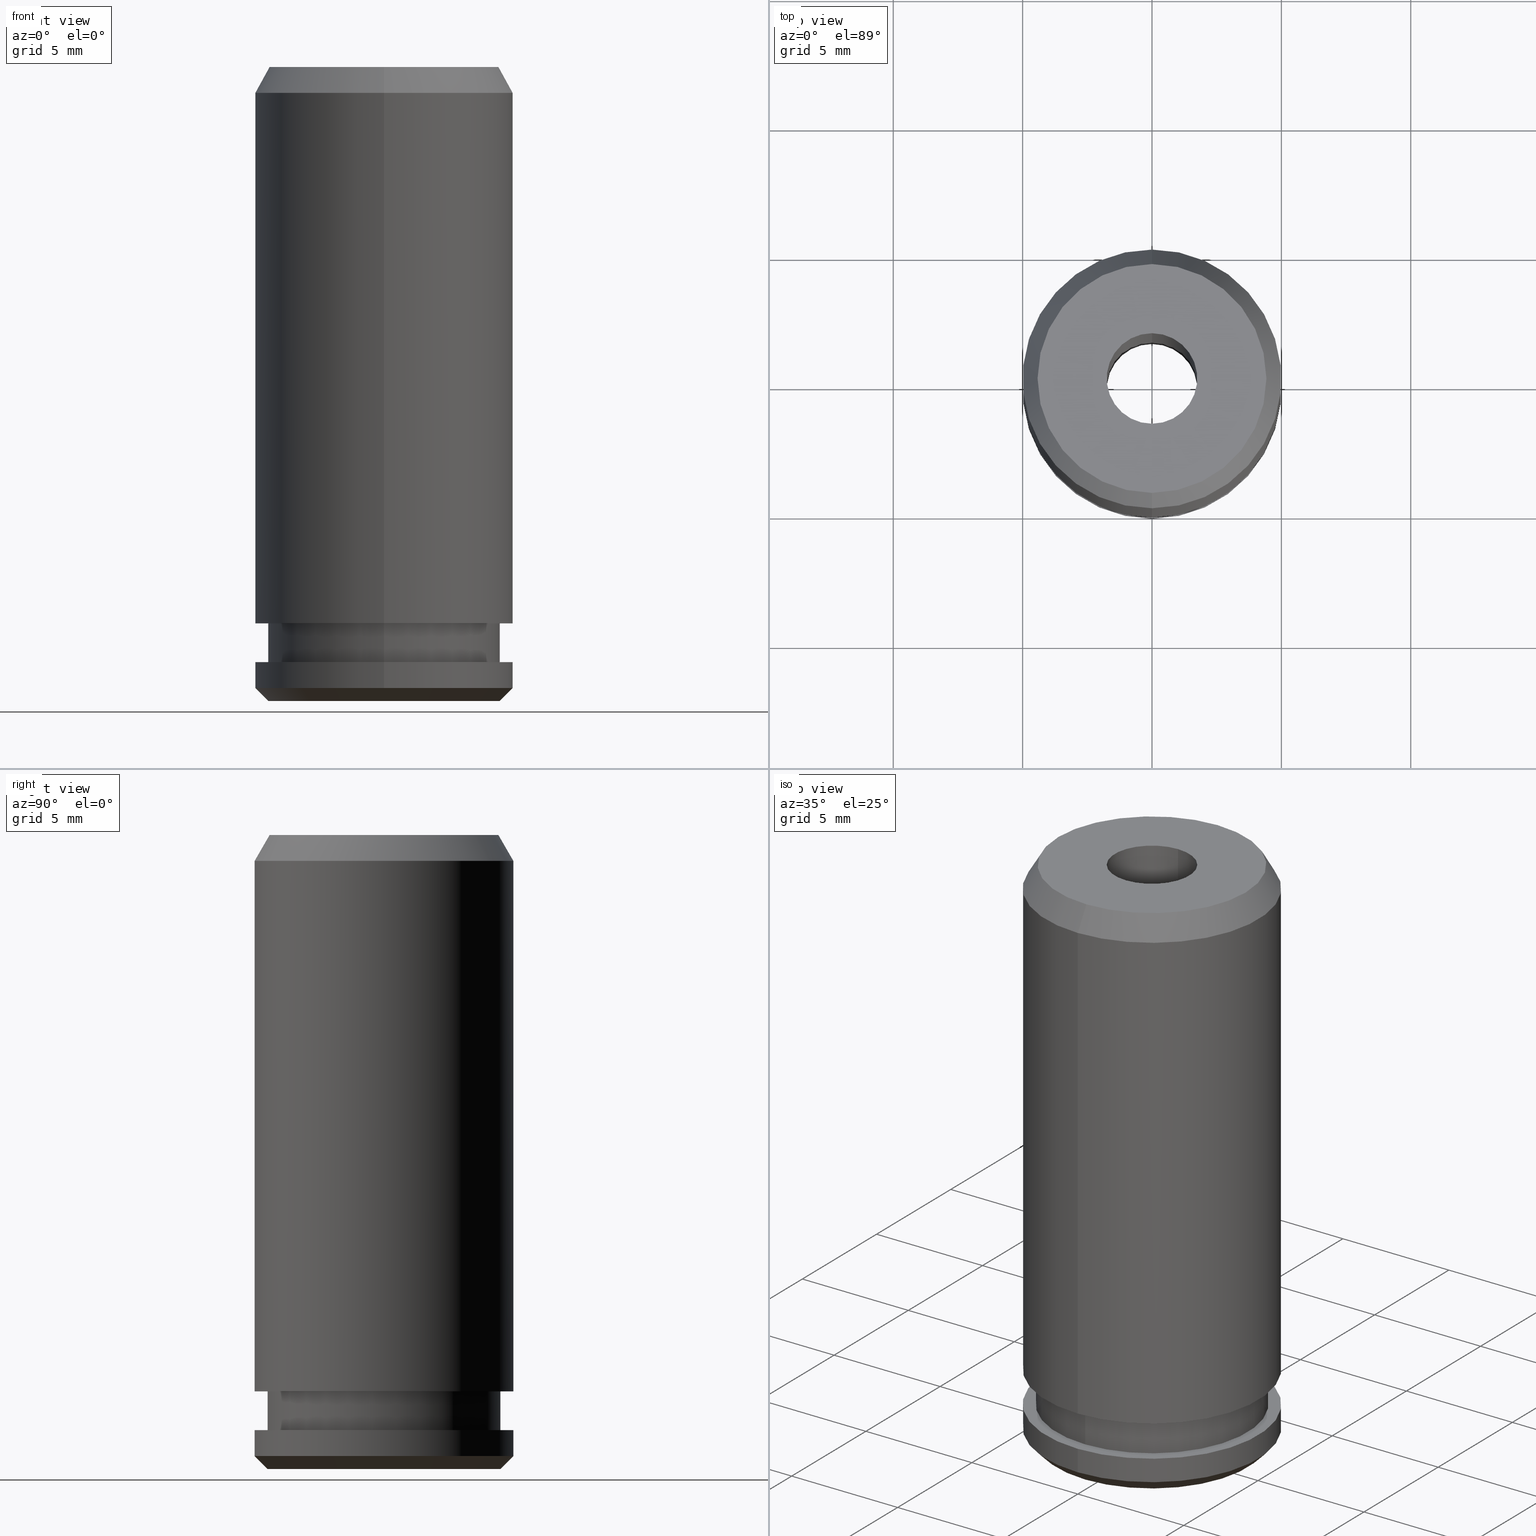
[diagram: canonical four-view strip — front | top / right | iso, engineering-drawing reading convention]
A machine part, canonical four-view strip (front | top / right | iso — engineering-drawing reading convention). The complete STEP part file that produces these views, byte-faithful:
ISO-10303-21;
HEADER;
FILE_DESCRIPTION(('no description'),'unknown implementation level');
FILE_NAME('D1EF588D-F935-4951-9EDD-8E3CCFFF2C74_export.stp','  ',('CIMSOURCE GmbH'),('CADClick - KiM GmbH - www.kimweb.de'),'unknown preprocess','ACIS','unknown authorization');
FILE_SCHEMA(('automotive_design'));
ENDSEC;
DATA;
#1=MECHANICAL_DESIGN_GEOMETRIC_PRESENTATION_REPRESENTATION(' ',(#10,#11,#12,#13,#14,#15,#16,#17,#18,#19,#20,#21,#22,#23,#24,#25,#26,#27,#28,#29,#30,#31,#32,#33,#34,#35,#36,#37,#38,#39,#40,#41,#42,#43,#44,#45,#46,#47,#48,#49,#50,#51,#52,#53,#54,#55,#56,#57,#58,#59,#60,#61,#62,#63,#64,#65,#66,#67,#68,#69,#70,#71,#72,#73,#74,#75,#76,#77,#78,#79,#80,#81,#82,#83,#84,#85),#6);
#2=PRODUCT_DEFINITION_CONTEXT('',#86,'design');
#3=APPLICATION_PROTOCOL_DEFINITION('INTERNATIONAL STANDARD','automotive_design',1994,#86);
#4=PRODUCT_CATEGORY_RELATIONSHIP('NONE','NONE',#87,#88);
#5=SHAPE_DEFINITION_REPRESENTATION(#89,#90);
#6= (GEOMETRIC_REPRESENTATION_CONTEXT(3)GLOBAL_UNCERTAINTY_ASSIGNED_CONTEXT((#93))GLOBAL_UNIT_ASSIGNED_CONTEXT((#95,#96,#97))REPRESENTATION_CONTEXT('NONE','WORKSPACE'));
#10=STYLED_ITEM('',(#99),#100);
#11=STYLED_ITEM('',(#101),#102);
#12=STYLED_ITEM('',(#103),#104);
#13=STYLED_ITEM('',(#105),#106);
#14=STYLED_ITEM('',(#107),#108);
#15=STYLED_ITEM('',(#109),#110);
#16=STYLED_ITEM('',(#111),#112);
#17=STYLED_ITEM('',(#113),#114);
#18=STYLED_ITEM('',(#115),#116);
#19=STYLED_ITEM('',(#117),#118);
#20=STYLED_ITEM('',(#119),#120);
#21=STYLED_ITEM('',(#121),#122);
#22=STYLED_ITEM('',(#123),#124);
#23=STYLED_ITEM('',(#125),#126);
#24=STYLED_ITEM('',(#127),#128);
#25=STYLED_ITEM('',(#129),#130);
#26=STYLED_ITEM('',(#131),#132);
#27=STYLED_ITEM('',(#133),#134);
#28=STYLED_ITEM('',(#135),#136);
#29=STYLED_ITEM('',(#137),#138);
#30=STYLED_ITEM('',(#139),#140);
#31=STYLED_ITEM('',(#141),#142);
#32=STYLED_ITEM('',(#143),#144);
#33=STYLED_ITEM('',(#145),#146);
#34=STYLED_ITEM('',(#147),#148);
#35=STYLED_ITEM('',(#149),#150);
#36=STYLED_ITEM('',(#151),#152);
#37=STYLED_ITEM('',(#153),#154);
#38=STYLED_ITEM('',(#155),#156);
#39=STYLED_ITEM('',(#157),#158);
#40=STYLED_ITEM('',(#159),#160);
#41=STYLED_ITEM('',(#161),#162);
#42=STYLED_ITEM('',(#163),#164);
#43=STYLED_ITEM('',(#165),#166);
#44=STYLED_ITEM('',(#167),#168);
#45=STYLED_ITEM('',(#169),#170);
#46=STYLED_ITEM('',(#171),#172);
#47=STYLED_ITEM('',(#173),#174);
#48=STYLED_ITEM('',(#175),#176);
#49=STYLED_ITEM('',(#177),#178);
#50=STYLED_ITEM('',(#179),#180);
#51=STYLED_ITEM('',(#181),#182);
#52=STYLED_ITEM('',(#183),#184);
#53=STYLED_ITEM('',(#185),#186);
#54=STYLED_ITEM('',(#187),#188);
#55=STYLED_ITEM('',(#189),#190);
#56=STYLED_ITEM('',(#191),#192);
#57=STYLED_ITEM('',(#193),#194);
#58=STYLED_ITEM('',(#195),#196);
#59=STYLED_ITEM('',(#197),#198);
#60=STYLED_ITEM('',(#199),#200);
#61=STYLED_ITEM('',(#201),#202);
#62=STYLED_ITEM('',(#203),#204);
#63=STYLED_ITEM('',(#205),#206);
#64=STYLED_ITEM('',(#207),#208);
#65=STYLED_ITEM('',(#209),#210);
#66=STYLED_ITEM('',(#211),#212);
#67=STYLED_ITEM('',(#213),#214);
#68=STYLED_ITEM('',(#215),#216);
#69=STYLED_ITEM('',(#217),#218);
#70=STYLED_ITEM('',(#219),#220);
#71=STYLED_ITEM('',(#221),#222);
#72=STYLED_ITEM('',(#223),#224);
#73=STYLED_ITEM('',(#225),#226);
#74=STYLED_ITEM('',(#227),#228);
#75=STYLED_ITEM('',(#229),#230);
#76=STYLED_ITEM('',(#231),#232);
#77=STYLED_ITEM('',(#233),#234);
#78=STYLED_ITEM('',(#235),#236);
#79=STYLED_ITEM('',(#237),#238);
#80=STYLED_ITEM('',(#239),#240);
#81=STYLED_ITEM('',(#241),#242);
#82=STYLED_ITEM('',(#243),#244);
#83=STYLED_ITEM('',(#245),#246);
#84=STYLED_ITEM('',(#247),#248);
#85=STYLED_ITEM('',(#249),#250);
#86=APPLICATION_CONTEXT(' ');
#87=PRODUCT_CATEGORY('part','NONE');
#88=PRODUCT_RELATED_PRODUCT_CATEGORY('detail',' ',(#251));
#89=PRODUCT_DEFINITION_SHAPE('NONE','NONE',#252);
#90=ADVANCED_BREP_SHAPE_REPRESENTATION('NONE',(#253,#254),#6);
#93=UNCERTAINTY_MEASURE_WITH_UNIT(LENGTH_MEASURE(1.0E-006),#95,'','');
#95= (CONVERSION_BASED_UNIT('MILLIMETRE',#257)LENGTH_UNIT()NAMED_UNIT(#260));
#96= (NAMED_UNIT(#262)PLANE_ANGLE_UNIT()SI_UNIT($,.RADIAN.));
#97= (NAMED_UNIT(#262)SOLID_ANGLE_UNIT()SI_UNIT($,.STERADIAN.));
#99=PRESENTATION_STYLE_ASSIGNMENT((#268));
#100=ADVANCED_FACE('NONE',(#269),#270,.T.);
#101=PRESENTATION_STYLE_ASSIGNMENT((#271));
#102=VERTEX_POINT('NONE',#272);
#103=PRESENTATION_STYLE_ASSIGNMENT((#273));
#104=VERTEX_POINT('NONE',#274);
#105=PRESENTATION_STYLE_ASSIGNMENT((#275));
#106=ADVANCED_FACE('NONE',(#276),#277,.T.);
#107=PRESENTATION_STYLE_ASSIGNMENT((#278));
#108=EDGE_CURVE('NONE',#170,#204,#279,.T.);
#109=PRESENTATION_STYLE_ASSIGNMENT((#280));
#110=EDGE_CURVE('NONE',#162,#138,#281,.T.);
#111=PRESENTATION_STYLE_ASSIGNMENT((#282));
#112=VERTEX_POINT('NONE',#283);
#113=PRESENTATION_STYLE_ASSIGNMENT((#284));
#114=VERTEX_POINT('NONE',#285);
#115=PRESENTATION_STYLE_ASSIGNMENT((#286));
#116=EDGE_CURVE('NONE',#250,#104,#287,.T.);
#117=PRESENTATION_STYLE_ASSIGNMENT((#288));
#118=EDGE_CURVE('NONE',#162,#146,#289,.T.);
#119=PRESENTATION_STYLE_ASSIGNMENT((#290));
#120=EDGE_CURVE('NONE',#216,#192,#291,.T.);
#121=PRESENTATION_STYLE_ASSIGNMENT((#292));
#122=EDGE_CURVE('NONE',#148,#156,#293,.T.);
#123=PRESENTATION_STYLE_ASSIGNMENT((#294));
#124=EDGE_CURVE('NONE',#178,#114,#295,.T.);
#125=PRESENTATION_STYLE_ASSIGNMENT((#296));
#126=EDGE_CURVE('NONE',#146,#218,#297,.T.);
#127=PRESENTATION_STYLE_ASSIGNMENT((#298));
#128=EDGE_CURVE('NONE',#204,#226,#299,.T.);
#129=PRESENTATION_STYLE_ASSIGNMENT((#300));
#130=EDGE_CURVE('NONE',#184,#176,#301,.T.);
#131=PRESENTATION_STYLE_ASSIGNMENT((#302));
#132=ADVANCED_FACE('NONE',(#303,#304),#305,.T.);
#133=PRESENTATION_STYLE_ASSIGNMENT((#306));
#134=EDGE_CURVE('NONE',#228,#176,#307,.T.);
#135=PRESENTATION_STYLE_ASSIGNMENT((#308));
#136=EDGE_CURVE('NONE',#104,#192,#309,.T.);
#137=PRESENTATION_STYLE_ASSIGNMENT((#310));
#138=VERTEX_POINT('NONE',#311);
#139=PRESENTATION_STYLE_ASSIGNMENT((#312));
#140=ADVANCED_FACE('NONE',(#313),#314,.T.);
#141=PRESENTATION_STYLE_ASSIGNMENT((#315));
#142=ADVANCED_FACE('NONE',(#316),#317,.F.);
#143=PRESENTATION_STYLE_ASSIGNMENT((#318));
#144=EDGE_CURVE('NONE',#148,#138,#319,.T.);
#145=PRESENTATION_STYLE_ASSIGNMENT((#320));
#146=VERTEX_POINT('NONE',#321);
#147=PRESENTATION_STYLE_ASSIGNMENT((#322));
#148=VERTEX_POINT('NONE',#323);
#149=PRESENTATION_STYLE_ASSIGNMENT((#324));
#150=ADVANCED_FACE('NONE',(#325),#326,.T.);
#151=PRESENTATION_STYLE_ASSIGNMENT((#327));
#152=ADVANCED_FACE('NONE',(#328),#329,.T.);
#153=PRESENTATION_STYLE_ASSIGNMENT((#330));
#154=EDGE_CURVE('NONE',#228,#168,#331,.T.);
#155=PRESENTATION_STYLE_ASSIGNMENT((#332));
#156=VERTEX_POINT('NONE',#333);
#157=PRESENTATION_STYLE_ASSIGNMENT((#334));
#158=ADVANCED_FACE('NONE',(#335,#336),#337,.T.);
#159=PRESENTATION_STYLE_ASSIGNMENT((#338));
#160=ADVANCED_FACE('NONE',(#339),#340,.T.);
#161=PRESENTATION_STYLE_ASSIGNMENT((#341));
#162=VERTEX_POINT('NONE',#342);
#163=PRESENTATION_STYLE_ASSIGNMENT((#343));
#164=EDGE_CURVE('NONE',#170,#112,#344,.T.);
#165=PRESENTATION_STYLE_ASSIGNMENT((#345));
#166=EDGE_CURVE('NONE',#176,#184,#346,.T.);
#167=PRESENTATION_STYLE_ASSIGNMENT((#347));
#168=VERTEX_POINT('NONE',#348);
#169=PRESENTATION_STYLE_ASSIGNMENT((#349));
#170=VERTEX_POINT('NONE',#350);
#171=PRESENTATION_STYLE_ASSIGNMENT((#351));
#172=EDGE_CURVE('NONE',#218,#138,#352,.T.);
#173=PRESENTATION_STYLE_ASSIGNMENT((#353));
#174=EDGE_CURVE('NONE',#156,#218,#354,.T.);
#175=PRESENTATION_STYLE_ASSIGNMENT((#355));
#176=VERTEX_POINT('NONE',#356);
#177=PRESENTATION_STYLE_ASSIGNMENT((#357));
#178=VERTEX_POINT('NONE',#358);
#179=PRESENTATION_STYLE_ASSIGNMENT((#359));
#180=EDGE_CURVE('NONE',#112,#226,#360,.T.);
#181=PRESENTATION_STYLE_ASSIGNMENT((#361));
#182=EDGE_CURVE('NONE',#216,#250,#362,.T.);
#183=PRESENTATION_STYLE_ASSIGNMENT((#363));
#184=VERTEX_POINT('NONE',#364);
#185=PRESENTATION_STYLE_ASSIGNMENT((#365));
#186=EDGE_CURVE('NONE',#204,#170,#366,.T.);
#187=PRESENTATION_STYLE_ASSIGNMENT((#367));
#188=ADVANCED_FACE('NONE',(#368),#369,.F.);
#189=PRESENTATION_STYLE_ASSIGNMENT((#370));
#190=EDGE_CURVE('NONE',#236,#228,#371,.T.);
#191=PRESENTATION_STYLE_ASSIGNMENT((#372));
#192=VERTEX_POINT('NONE',#373);
#193=PRESENTATION_STYLE_ASSIGNMENT((#374));
#194=EDGE_CURVE('NONE',#192,#104,#375,.T.);
#195=PRESENTATION_STYLE_ASSIGNMENT((#376));
#196=ADVANCED_FACE('NONE',(#377,#378),#379,.T.);
#197=PRESENTATION_STYLE_ASSIGNMENT((#380));
#198=ADVANCED_FACE('NONE',(#381),#382,.F.);
#199=PRESENTATION_STYLE_ASSIGNMENT((#383));
#200=ADVANCED_FACE('NONE',(#384),#385,.T.);
#201=PRESENTATION_STYLE_ASSIGNMENT((#386));
#202=EDGE_CURVE('NONE',#168,#228,#387,.T.);
#203=PRESENTATION_STYLE_ASSIGNMENT((#388));
#204=VERTEX_POINT('NONE',#389);
#205=PRESENTATION_STYLE_ASSIGNMENT((#390));
#206=EDGE_CURVE('NONE',#102,#236,#391,.T.);
#207=PRESENTATION_STYLE_ASSIGNMENT((#392));
#208=EDGE_CURVE('NONE',#114,#178,#393,.T.);
#209=PRESENTATION_STYLE_ASSIGNMENT((#394));
#210=EDGE_CURVE('NONE',#102,#168,#395,.T.);
#211=PRESENTATION_STYLE_ASSIGNMENT((#396));
#212=EDGE_CURVE('NONE',#104,#178,#397,.T.);
#213=PRESENTATION_STYLE_ASSIGNMENT((#398));
#214=ADVANCED_FACE('NONE',(#399),#400,.F.);
#215=PRESENTATION_STYLE_ASSIGNMENT((#401));
#216=VERTEX_POINT('NONE',#402);
#217=PRESENTATION_STYLE_ASSIGNMENT((#403));
#218=VERTEX_POINT('NONE',#404);
#219=PRESENTATION_STYLE_ASSIGNMENT((#405));
#220=ADVANCED_FACE('NONE',(#406),#407,.T.);
#221=PRESENTATION_STYLE_ASSIGNMENT((#408));
#222=EDGE_CURVE('NONE',#146,#162,#409,.T.);
#223=PRESENTATION_STYLE_ASSIGNMENT((#410));
#224=ADVANCED_FACE('NONE',(#411),#412,.T.);
#225=PRESENTATION_STYLE_ASSIGNMENT((#413));
#226=VERTEX_POINT('NONE',#414);
#227=PRESENTATION_STYLE_ASSIGNMENT((#415));
#228=VERTEX_POINT('NONE',#416);
#229=PRESENTATION_STYLE_ASSIGNMENT((#417));
#230=EDGE_CURVE('NONE',#156,#148,#418,.T.);
#231=PRESENTATION_STYLE_ASSIGNMENT((#419));
#232=EDGE_CURVE('NONE',#236,#102,#420,.T.);
#233=PRESENTATION_STYLE_ASSIGNMENT((#421));
#234=EDGE_CURVE('NONE',#168,#184,#422,.T.);
#235=PRESENTATION_STYLE_ASSIGNMENT((#423));
#236=VERTEX_POINT('NONE',#424);
#237=PRESENTATION_STYLE_ASSIGNMENT((#425));
#238=EDGE_CURVE('NONE',#250,#216,#426,.T.);
#239=PRESENTATION_STYLE_ASSIGNMENT((#427));
#240=ADVANCED_FACE('NONE',(#428),#429,.T.);
#241=PRESENTATION_STYLE_ASSIGNMENT((#430));
#242=EDGE_CURVE('NONE',#138,#218,#431,.T.);
#243=PRESENTATION_STYLE_ASSIGNMENT((#432));
#244=ADVANCED_FACE('NONE',(#433,#434),#435,.T.);
#245=PRESENTATION_STYLE_ASSIGNMENT((#436));
#246=EDGE_CURVE('NONE',#192,#114,#437,.T.);
#247=PRESENTATION_STYLE_ASSIGNMENT((#438));
#248=EDGE_CURVE('NONE',#226,#112,#439,.T.);
#249=PRESENTATION_STYLE_ASSIGNMENT((#440));
#250=VERTEX_POINT('NONE',#441);
#251=PRODUCT('NONE','NONE','PART-NONE-DESC',(#442));
#252=PRODUCT_DEFINITION('NONE','NONE',#443,#2);
#253=MANIFOLD_SOLID_BREP('NONE',#444);
#254=AXIS2_PLACEMENT_3D('',#445,#446,#447);
#257=LENGTH_MEASURE_WITH_UNIT(LENGTH_MEASURE(1.0),#448);
#260=DIMENSIONAL_EXPONENTS(1.0,0.0,0.0,0.0,0.0,0.0,0.0);
#262=DIMENSIONAL_EXPONENTS(0.0,0.0,0.0,0.0,0.0,0.0,0.0);
#268=SURFACE_STYLE_USAGE(.BOTH.,#449);
#269=FACE_OUTER_BOUND('',#450,.T.);
#270=CONICAL_SURFACE('',#451,4.5,0.785398163397447);
#271=POINT_STYLE(' ',#452,POSITIVE_LENGTH_MEASURE(1.0E-006),#453);
#272=CARTESIAN_POINT('',(-2.14306111918916E-016,1.75,24.5));
#273=POINT_STYLE(' ',#454,POSITIVE_LENGTH_MEASURE(1.0E-006),#455);
#274=CARTESIAN_POINT('',(0.0,-5.0,23.5));
#275=SURFACE_STYLE_USAGE(.BOTH.,#456);
#276=FACE_OUTER_BOUND('',#457,.T.);
#277=CONICAL_SURFACE('',#458,5.0,0.5235987755983);
#278=CURVE_STYLE('',#459,POSITIVE_LENGTH_MEASURE(1.0E-006),#460);
#279=CIRCLE('',#461,4.5);
#280=CURVE_STYLE('',#462,POSITIVE_LENGTH_MEASURE(1.0E-006),#463);
#281=LINE('',#464,#465);
#282=POINT_STYLE(' ',#466,POSITIVE_LENGTH_MEASURE(1.0E-006),#467);
#283=CARTESIAN_POINT('',(0.0,-4.5,1.5));
#284=POINT_STYLE(' ',#468,POSITIVE_LENGTH_MEASURE(1.0E-006),#469);
#285=CARTESIAN_POINT('',(-6.12303176911189E-016,5.0,3.0));
#286=CURVE_STYLE('',#470,POSITIVE_LENGTH_MEASURE(1.0E-006),#471);
#287=LINE('',#472,#473);
#288=CURVE_STYLE('',#474,POSITIVE_LENGTH_MEASURE(1.0E-006),#475);
#289=CIRCLE('',#476,5.0);
#290=CURVE_STYLE('',#477,POSITIVE_LENGTH_MEASURE(1.0E-006),#478);
#291=LINE('',#479,#480);
#292=CURVE_STYLE('',#481,POSITIVE_LENGTH_MEASURE(1.0E-006),#482);
#293=CIRCLE('',#483,4.5);
#294=CURVE_STYLE('',#484,POSITIVE_LENGTH_MEASURE(1.0E-006),#485);
#295=CIRCLE('',#486,5.0);
#296=CURVE_STYLE('',#487,POSITIVE_LENGTH_MEASURE(1.0E-006),#488);
#297=LINE('',#489,#490);
#298=CURVE_STYLE('',#491,POSITIVE_LENGTH_MEASURE(1.0E-006),#492);
#299=LINE('',#493,#494);
#300=CURVE_STYLE('',#495,POSITIVE_LENGTH_MEASURE(1.0E-006),#496);
#301=CIRCLE('',#497,2.05);
#302=SURFACE_STYLE_USAGE(.BOTH.,#498);
#303=FACE_OUTER_BOUND('',#499,.T.);
#304=FACE_BOUND('',#500,.T.);
#305=PLANE('',#501);
#306=CURVE_STYLE('',#502,POSITIVE_LENGTH_MEASURE(1.0E-006),#503);
#307=LINE('',#504,#505);
#308=CURVE_STYLE('',#506,POSITIVE_LENGTH_MEASURE(1.0E-006),#507);
#309=CIRCLE('',#508,5.0);
#310=POINT_STYLE(' ',#509,POSITIVE_LENGTH_MEASURE(1.0E-006),#510);
#311=CARTESIAN_POINT('',(-6.12303176911189E-016,5.0,0.5));
#312=SURFACE_STYLE_USAGE(.BOTH.,#511);
#313=FACE_OUTER_BOUND('',#512,.T.);
#314=CYLINDRICAL_SURFACE('',#513,5.0);
#315=SURFACE_STYLE_USAGE(.BOTH.,#514);
#316=FACE_OUTER_BOUND('',#515,.T.);
#317=CYLINDRICAL_SURFACE('',#516,1.75);
#318=CURVE_STYLE('',#517,POSITIVE_LENGTH_MEASURE(1.0E-006),#518);
#319=LINE('',#519,#520);
#320=POINT_STYLE(' ',#521,POSITIVE_LENGTH_MEASURE(1.0E-006),#522);
#321=CARTESIAN_POINT('',(0.0,-5.0,1.5));
#322=POINT_STYLE(' ',#523,POSITIVE_LENGTH_MEASURE(1.0E-006),#524);
#323=CARTESIAN_POINT('',(0.0,4.5,0.0));
#324=SURFACE_STYLE_USAGE(.BOTH.,#525);
#325=FACE_OUTER_BOUND('',#526,.T.);
#326=CONICAL_SURFACE('',#527,5.0,0.5235987755983);
#327=SURFACE_STYLE_USAGE(.BOTH.,#528);
#328=FACE_OUTER_BOUND('',#529,.T.);
#329=CYLINDRICAL_SURFACE('',#530,5.0);
#330=CURVE_STYLE('',#531,POSITIVE_LENGTH_MEASURE(1.0E-006),#532);
#331=CIRCLE('',#533,1.75);
#332=POINT_STYLE(' ',#534,POSITIVE_LENGTH_MEASURE(1.0E-006),#535);
#333=CARTESIAN_POINT('',(-5.81688018065629E-016,-4.5,0.0));
#334=SURFACE_STYLE_USAGE(.BOTH.,#536);
#335=FACE_OUTER_BOUND('',#537,.T.);
#336=FACE_BOUND('',#538,.T.);
#337=PLANE('',#539);
#338=SURFACE_STYLE_USAGE(.BOTH.,#540);
#339=FACE_OUTER_BOUND('',#541,.T.);
#340=CYLINDRICAL_SURFACE('',#542,5.0);
#341=POINT_STYLE(' ',#543,POSITIVE_LENGTH_MEASURE(1.0E-006),#544);
#342=CARTESIAN_POINT('',(-6.12303176911189E-016,5.0,1.5));
#343=CURVE_STYLE('',#545,POSITIVE_LENGTH_MEASURE(1.0E-006),#546);
#344=LINE('',#547,#548);
#345=CURVE_STYLE('',#549,POSITIVE_LENGTH_MEASURE(1.0E-006),#550);
#346=CIRCLE('',#551,2.05);
#347=POINT_STYLE(' ',#552,POSITIVE_LENGTH_MEASURE(1.0E-006),#553);
#348=CARTESIAN_POINT('',(-2.32675207226251E-016,1.75,0.519615242270668));
#349=POINT_STYLE(' ',#554,POSITIVE_LENGTH_MEASURE(1.0E-006),#555);
#350=CARTESIAN_POINT('',(0.0,-4.5,3.0));
#351=CURVE_STYLE('',#556,POSITIVE_LENGTH_MEASURE(1.0E-006),#557);
#352=CIRCLE('',#558,5.0);
#353=CURVE_STYLE('',#559,POSITIVE_LENGTH_MEASURE(1.0E-006),#560);
#354=LINE('',#561,#562);
#355=POINT_STYLE(' ',#563,POSITIVE_LENGTH_MEASURE(1.0E-006),#564);
#356=CARTESIAN_POINT('',(0.0,-2.05,0.0));
#357=POINT_STYLE(' ',#565,POSITIVE_LENGTH_MEASURE(1.0E-006),#566);
#358=CARTESIAN_POINT('',(0.0,-5.0,3.0));
#359=CURVE_STYLE('',#567,POSITIVE_LENGTH_MEASURE(1.0E-006),#568);
#360=CIRCLE('',#569,4.5);
#361=CURVE_STYLE('',#570,POSITIVE_LENGTH_MEASURE(1.0E-006),#571);
#362=CIRCLE('',#572,4.42264973081037);
#363=POINT_STYLE(' ',#573,POSITIVE_LENGTH_MEASURE(1.0E-006),#574);
#364=CARTESIAN_POINT('',(-2.51044302533587E-016,2.05,0.0));
#365=CURVE_STYLE('',#575,POSITIVE_LENGTH_MEASURE(1.0E-006),#576);
#366=CIRCLE('',#577,4.5);
#367=SURFACE_STYLE_USAGE(.BOTH.,#578);
#368=FACE_OUTER_BOUND('',#579,.T.);
#369=CONICAL_SURFACE('',#580,1.75,0.5235987755983);
#370=CURVE_STYLE('',#581,POSITIVE_LENGTH_MEASURE(1.0E-006),#582);
#371=LINE('',#583,#584);
#372=POINT_STYLE(' ',#585,POSITIVE_LENGTH_MEASURE(1.0E-006),#586);
#373=CARTESIAN_POINT('',(-6.12303176911188E-016,5.0,23.5));
#374=CURVE_STYLE('',#587,POSITIVE_LENGTH_MEASURE(1.0E-006),#588);
#375=CIRCLE('',#589,5.0);
#376=SURFACE_STYLE_USAGE(.BOTH.,#590);
#377=FACE_OUTER_BOUND('',#591,.T.);
#378=FACE_BOUND('',#592,.T.);
#379=PLANE('',#593);
#380=SURFACE_STYLE_USAGE(.BOTH.,#594);
#381=FACE_OUTER_BOUND('',#595,.T.);
#382=CONICAL_SURFACE('',#596,1.75,0.5235987755983);
#383=SURFACE_STYLE_USAGE(.BOTH.,#597);
#384=FACE_OUTER_BOUND('',#598,.T.);
#385=CONICAL_SURFACE('',#599,4.5,0.785398163397447);
#386=CURVE_STYLE('',#600,POSITIVE_LENGTH_MEASURE(1.0E-006),#601);
#387=CIRCLE('',#602,1.75);
#388=POINT_STYLE(' ',#603,POSITIVE_LENGTH_MEASURE(1.0E-006),#604);
#389=CARTESIAN_POINT('',(-5.5107285922007E-016,4.5,3.0));
#390=CURVE_STYLE('',#605,POSITIVE_LENGTH_MEASURE(1.0E-006),#606);
#391=CIRCLE('',#607,1.75);
#392=CURVE_STYLE('',#608,POSITIVE_LENGTH_MEASURE(1.0E-006),#609);
#393=CIRCLE('',#610,5.0);
#394=CURVE_STYLE('',#611,POSITIVE_LENGTH_MEASURE(1.0E-006),#612);
#395=LINE('',#613,#614);
#396=CURVE_STYLE('',#615,POSITIVE_LENGTH_MEASURE(1.0E-006),#616);
#397=LINE('',#617,#618);
#398=SURFACE_STYLE_USAGE(.BOTH.,#619);
#399=FACE_OUTER_BOUND('',#620,.T.);
#400=CYLINDRICAL_SURFACE('',#621,1.75);
#401=POINT_STYLE(' ',#622,POSITIVE_LENGTH_MEASURE(1.0E-006),#623);
#402=CARTESIAN_POINT('',(-5.76951836509654E-016,4.42264973081037,24.5));
#403=POINT_STYLE(' ',#624,POSITIVE_LENGTH_MEASURE(1.0E-006),#625);
#404=CARTESIAN_POINT('',(0.0,-5.0,0.5));
#405=SURFACE_STYLE_USAGE(.BOTH.,#626);
#406=FACE_OUTER_BOUND('',#627,.T.);
#407=CYLINDRICAL_SURFACE('',#628,4.5);
#408=CURVE_STYLE('',#629,POSITIVE_LENGTH_MEASURE(1.0E-006),#630);
#409=CIRCLE('',#631,5.0);
#410=SURFACE_STYLE_USAGE(.BOTH.,#632);
#411=FACE_OUTER_BOUND('',#633,.T.);
#412=CYLINDRICAL_SURFACE('',#634,5.0);
#413=POINT_STYLE(' ',#635,POSITIVE_LENGTH_MEASURE(1.0E-006),#636);
#414=CARTESIAN_POINT('',(-5.5107285922007E-016,4.5,1.5));
#415=POINT_STYLE(' ',#637,POSITIVE_LENGTH_MEASURE(1.0E-006),#638);
#416=CARTESIAN_POINT('',(0.0,-1.75,0.519615242270668));
#417=CURVE_STYLE('',#639,POSITIVE_LENGTH_MEASURE(1.0E-006),#640);
#418=CIRCLE('',#641,4.5);
#419=CURVE_STYLE('',#642,POSITIVE_LENGTH_MEASURE(1.0E-006),#643);
#420=CIRCLE('',#644,1.75);
#421=CURVE_STYLE('',#645,POSITIVE_LENGTH_MEASURE(1.0E-006),#646);
#422=LINE('',#647,#648);
#423=POINT_STYLE(' ',#649,POSITIVE_LENGTH_MEASURE(1.0E-006),#650);
#424=CARTESIAN_POINT('',(0.0,-1.75,24.5));
#425=CURVE_STYLE('',#651,POSITIVE_LENGTH_MEASURE(1.0E-006),#652);
#426=CIRCLE('',#653,4.42264973081037);
#427=SURFACE_STYLE_USAGE(.BOTH.,#654);
#428=FACE_OUTER_BOUND('',#655,.T.);
#429=CYLINDRICAL_SURFACE('',#656,4.5);
#430=CURVE_STYLE('',#657,POSITIVE_LENGTH_MEASURE(1.0E-006),#658);
#431=CIRCLE('',#659,5.0);
#432=SURFACE_STYLE_USAGE(.BOTH.,#660);
#433=FACE_OUTER_BOUND('',#661,.T.);
#434=FACE_BOUND('',#662,.T.);
#435=PLANE('',#663);
#436=CURVE_STYLE('',#664,POSITIVE_LENGTH_MEASURE(1.0E-006),#665);
#437=LINE('',#666,#667);
#438=CURVE_STYLE('',#668,POSITIVE_LENGTH_MEASURE(1.0E-006),#669);
#439=CIRCLE('',#670,4.5);
#440=POINT_STYLE(' ',#671,POSITIVE_LENGTH_MEASURE(1.0E-006),#672);
#441=CARTESIAN_POINT('',(0.0,-4.42264973081037,24.5));
#442=PRODUCT_CONTEXT('',#86,'mechanical');
#443=PRODUCT_DEFINITION_FORMATION_WITH_SPECIFIED_SOURCE(' ','NONE',#251,.NOT_KNOWN.);
#444=CLOSED_SHELL('',(#214,#188,#200,#160,#240,#140,#106,#244,#150,#152,#132,#220,#158,#224,#100,#196,#198,#142));
#445=CARTESIAN_POINT('',(0.0,0.0,0.0));
#446=DIRECTION('',(0.0,0.0,1.0));
#447=DIRECTION('',(1.0,0.0,0.0));
#448= (NAMED_UNIT(#260)LENGTH_UNIT()SI_UNIT(.MILLI.,.METRE.));
#449=SURFACE_SIDE_STYLE('',(#674));
#450=EDGE_LOOP('',(#675,#676,#677,#678));
#451=AXIS2_PLACEMENT_3D('',#679,#680,#681);
#452=PRE_DEFINED_MARKER('');
#453=COLOUR_RGB('', 0.5, 0.5, 0.5);
#454=PRE_DEFINED_MARKER('');
#455=COLOUR_RGB('', 0.5, 0.5, 0.5);
#456=SURFACE_SIDE_STYLE('',(#682));
#457=EDGE_LOOP('',(#683,#684,#685,#686));
#458=AXIS2_PLACEMENT_3D('',#687,#688,#689);
#459=DRAUGHTING_PRE_DEFINED_CURVE_FONT('continuous');
#460=COLOUR_RGB('', 0.5, 0.5, 0.5);
#461=AXIS2_PLACEMENT_3D('',#690,#691,#692);
#462=DRAUGHTING_PRE_DEFINED_CURVE_FONT('continuous');
#463=COLOUR_RGB('', 0.5, 0.5, 0.5);
#464=CARTESIAN_POINT('',(-6.12303176911189E-016,5.0,-1.13644490972339));
#465=VECTOR('',#693,1000.0);
#466=PRE_DEFINED_MARKER('');
#467=COLOUR_RGB('', 0.5, 0.5, 0.5);
#468=PRE_DEFINED_MARKER('');
#469=COLOUR_RGB('', 0.5, 0.5, 0.5);
#470=DRAUGHTING_PRE_DEFINED_CURVE_FONT('continuous');
#471=COLOUR_RGB('', 0.5, 0.5, 0.5);
#472=CARTESIAN_POINT('',(0.0,-5.0,23.5));
#473=VECTOR('',#694,1000.0);
#474=DRAUGHTING_PRE_DEFINED_CURVE_FONT('continuous');
#475=COLOUR_RGB('', 0.5, 0.5, 0.5);
#476=AXIS2_PLACEMENT_3D('',#695,#696,#697);
#477=DRAUGHTING_PRE_DEFINED_CURVE_FONT('continuous');
#478=COLOUR_RGB('', 0.5, 0.5, 0.5);
#479=CARTESIAN_POINT('',(-6.12303176911188E-016,5.0,23.5));
#480=VECTOR('',#698,1000.0);
#481=DRAUGHTING_PRE_DEFINED_CURVE_FONT('continuous');
#482=COLOUR_RGB('', 0.5, 0.5, 0.5);
#483=AXIS2_PLACEMENT_3D('',#699,#700,#701);
#484=DRAUGHTING_PRE_DEFINED_CURVE_FONT('continuous');
#485=COLOUR_RGB('', 0.5, 0.5, 0.5);
#486=AXIS2_PLACEMENT_3D('',#702,#703,#704);
#487=DRAUGHTING_PRE_DEFINED_CURVE_FONT('continuous');
#488=COLOUR_RGB('', 0.5, 0.5, 0.5);
#489=CARTESIAN_POINT('',(0.0,-5.0,-1.13644490972339));
#490=VECTOR('',#705,1000.0);
#491=DRAUGHTING_PRE_DEFINED_CURVE_FONT('continuous');
#492=COLOUR_RGB('', 0.5, 0.5, 0.5);
#493=CARTESIAN_POINT('',(-5.5107285922007E-016,4.5,-1.13644490972339));
#494=VECTOR('',#706,1000.0);
#495=DRAUGHTING_PRE_DEFINED_CURVE_FONT('continuous');
#496=COLOUR_RGB('', 0.5, 0.5, 0.5);
#497=AXIS2_PLACEMENT_3D('',#707,#708,#709);
#498=SURFACE_SIDE_STYLE('',(#710));
#499=EDGE_LOOP('',(#711,#712));
#500=EDGE_LOOP('',(#713,#714));
#501=AXIS2_PLACEMENT_3D('',#715,#716,#717);
#502=DRAUGHTING_PRE_DEFINED_CURVE_FONT('continuous');
#503=COLOUR_RGB('', 0.5, 0.5, 0.5);
#504=CARTESIAN_POINT('',(0.0,-1.75,0.519615242270668));
#505=VECTOR('',#718,1000.0);
#506=DRAUGHTING_PRE_DEFINED_CURVE_FONT('continuous');
#507=COLOUR_RGB('', 0.5, 0.5, 0.5);
#508=AXIS2_PLACEMENT_3D('',#719,#720,#721);
#509=PRE_DEFINED_MARKER('');
#510=COLOUR_RGB('', 0.5, 0.5, 0.5);
#511=SURFACE_SIDE_STYLE('',(#722));
#512=EDGE_LOOP('',(#723,#724,#725,#726));
#513=AXIS2_PLACEMENT_3D('',#727,#728,#729);
#514=SURFACE_SIDE_STYLE('',(#730));
#515=EDGE_LOOP('',(#731,#732,#733,#734));
#516=AXIS2_PLACEMENT_3D('',#735,#736,#737);
#517=DRAUGHTING_PRE_DEFINED_CURVE_FONT('continuous');
#518=COLOUR_RGB('', 0.5, 0.5, 0.5);
#519=CARTESIAN_POINT('',(0.0,4.5,0.0));
#520=VECTOR('',#738,1000.0);
#521=PRE_DEFINED_MARKER('');
#522=COLOUR_RGB('', 0.5, 0.5, 0.5);
#523=PRE_DEFINED_MARKER('');
#524=COLOUR_RGB('', 0.5, 0.5, 0.5);
#525=SURFACE_SIDE_STYLE('',(#739));
#526=EDGE_LOOP('',(#740,#741,#742,#743));
#527=AXIS2_PLACEMENT_3D('',#744,#745,#746);
#528=SURFACE_SIDE_STYLE('',(#747));
#529=EDGE_LOOP('',(#748,#749,#750,#751));
#530=AXIS2_PLACEMENT_3D('',#752,#753,#754);
#531=DRAUGHTING_PRE_DEFINED_CURVE_FONT('continuous');
#532=COLOUR_RGB('', 0.5, 0.5, 0.5);
#533=AXIS2_PLACEMENT_3D('',#755,#756,#757);
#534=PRE_DEFINED_MARKER('');
#535=COLOUR_RGB('', 0.5, 0.5, 0.5);
#536=SURFACE_SIDE_STYLE('',(#758));
#537=EDGE_LOOP('',(#759,#760));
#538=EDGE_LOOP('',(#761,#762));
#539=AXIS2_PLACEMENT_3D('',#763,#764,#765);
#540=SURFACE_SIDE_STYLE('',(#766));
#541=EDGE_LOOP('',(#767,#768,#769,#770));
#542=AXIS2_PLACEMENT_3D('',#771,#772,#773);
#543=PRE_DEFINED_MARKER('');
#544=COLOUR_RGB('', 0.5, 0.5, 0.5);
#545=DRAUGHTING_PRE_DEFINED_CURVE_FONT('continuous');
#546=COLOUR_RGB('', 0.5, 0.5, 0.5);
#547=CARTESIAN_POINT('',(0.0,-4.5,-1.13644490972339));
#548=VECTOR('',#774,1000.0);
#549=DRAUGHTING_PRE_DEFINED_CURVE_FONT('continuous');
#550=COLOUR_RGB('', 0.5, 0.5, 0.5);
#551=AXIS2_PLACEMENT_3D('',#775,#776,#777);
#552=PRE_DEFINED_MARKER('');
#553=COLOUR_RGB('', 0.5, 0.5, 0.5);
#554=PRE_DEFINED_MARKER('');
#555=COLOUR_RGB('', 0.5, 0.5, 0.5);
#556=DRAUGHTING_PRE_DEFINED_CURVE_FONT('continuous');
#557=COLOUR_RGB('', 0.5, 0.5, 0.5);
#558=AXIS2_PLACEMENT_3D('',#778,#779,#780);
#559=DRAUGHTING_PRE_DEFINED_CURVE_FONT('continuous');
#560=COLOUR_RGB('', 0.5, 0.5, 0.5);
#561=CARTESIAN_POINT('',(-5.5107285922007E-016,-4.5,0.0));
#562=VECTOR('',#781,1000.0);
#563=PRE_DEFINED_MARKER('');
#564=COLOUR_RGB('', 0.5, 0.5, 0.5);
#565=PRE_DEFINED_MARKER('');
#566=COLOUR_RGB('', 0.5, 0.5, 0.5);
#567=DRAUGHTING_PRE_DEFINED_CURVE_FONT('continuous');
#568=COLOUR_RGB('', 0.5, 0.5, 0.5);
#569=AXIS2_PLACEMENT_3D('',#782,#783,#784);
#570=DRAUGHTING_PRE_DEFINED_CURVE_FONT('continuous');
#571=COLOUR_RGB('', 0.5, 0.5, 0.5);
#572=AXIS2_PLACEMENT_3D('',#785,#786,#787);
#573=PRE_DEFINED_MARKER('');
#574=COLOUR_RGB('', 0.5, 0.5, 0.5);
#575=DRAUGHTING_PRE_DEFINED_CURVE_FONT('continuous');
#576=COLOUR_RGB('', 0.5, 0.5, 0.5);
#577=AXIS2_PLACEMENT_3D('',#788,#789,#790);
#578=SURFACE_SIDE_STYLE('',(#791));
#579=EDGE_LOOP('',(#792,#793,#794,#795));
#580=AXIS2_PLACEMENT_3D('',#796,#797,#798);
#581=DRAUGHTING_PRE_DEFINED_CURVE_FONT('continuous');
#582=COLOUR_RGB('', 0.5, 0.5, 0.5);
#583=CARTESIAN_POINT('',(0.0,-1.75,-1.13644490972339));
#584=VECTOR('',#799,1000.0);
#585=PRE_DEFINED_MARKER('');
#586=COLOUR_RGB('', 0.5, 0.5, 0.5);
#587=DRAUGHTING_PRE_DEFINED_CURVE_FONT('continuous');
#588=COLOUR_RGB('', 0.5, 0.5, 0.5);
#589=AXIS2_PLACEMENT_3D('',#800,#801,#802);
#590=SURFACE_SIDE_STYLE('',(#803));
#591=EDGE_LOOP('',(#804,#805));
#592=EDGE_LOOP('',(#806,#807));
#593=AXIS2_PLACEMENT_3D('',#808,#809,#810);
#594=SURFACE_SIDE_STYLE('',(#811));
#595=EDGE_LOOP('',(#812,#813,#814,#815));
#596=AXIS2_PLACEMENT_3D('',#816,#817,#818);
#597=SURFACE_SIDE_STYLE('',(#819));
#598=EDGE_LOOP('',(#820,#821,#822,#823));
#599=AXIS2_PLACEMENT_3D('',#824,#825,#826);
#600=DRAUGHTING_PRE_DEFINED_CURVE_FONT('continuous');
#601=COLOUR_RGB('', 0.5, 0.5, 0.5);
#602=AXIS2_PLACEMENT_3D('',#827,#828,#829);
#603=PRE_DEFINED_MARKER('');
#604=COLOUR_RGB('', 0.5, 0.5, 0.5);
#605=DRAUGHTING_PRE_DEFINED_CURVE_FONT('continuous');
#606=COLOUR_RGB('', 0.5, 0.5, 0.5);
#607=AXIS2_PLACEMENT_3D('',#830,#831,#832);
#608=DRAUGHTING_PRE_DEFINED_CURVE_FONT('continuous');
#609=COLOUR_RGB('', 0.5, 0.5, 0.5);
#610=AXIS2_PLACEMENT_3D('',#833,#834,#835);
#611=DRAUGHTING_PRE_DEFINED_CURVE_FONT('continuous');
#612=COLOUR_RGB('', 0.5, 0.5, 0.5);
#613=CARTESIAN_POINT('',(-2.14306111918916E-016,1.75,-1.13644490972339));
#614=VECTOR('',#836,1000.0);
#615=DRAUGHTING_PRE_DEFINED_CURVE_FONT('continuous');
#616=COLOUR_RGB('', 0.5, 0.5, 0.5);
#617=CARTESIAN_POINT('',(0.0,-5.0,-1.13644490972339));
#618=VECTOR('',#837,1000.0);
#619=SURFACE_SIDE_STYLE('',(#838));
#620=EDGE_LOOP('',(#839,#840,#841,#842));
#621=AXIS2_PLACEMENT_3D('',#843,#844,#845);
#622=PRE_DEFINED_MARKER('');
#623=COLOUR_RGB('', 0.5, 0.5, 0.5);
#624=PRE_DEFINED_MARKER('');
#625=COLOUR_RGB('', 0.5, 0.5, 0.5);
#626=SURFACE_SIDE_STYLE('',(#846));
#627=EDGE_LOOP('',(#847,#848,#849,#850));
#628=AXIS2_PLACEMENT_3D('',#851,#852,#853);
#629=DRAUGHTING_PRE_DEFINED_CURVE_FONT('continuous');
#630=COLOUR_RGB('', 0.5, 0.5, 0.5);
#631=AXIS2_PLACEMENT_3D('',#854,#855,#856);
#632=SURFACE_SIDE_STYLE('',(#857));
#633=EDGE_LOOP('',(#858,#859,#860,#861));
#634=AXIS2_PLACEMENT_3D('',#862,#863,#864);
#635=PRE_DEFINED_MARKER('');
#636=COLOUR_RGB('', 0.5, 0.5, 0.5);
#637=PRE_DEFINED_MARKER('');
#638=COLOUR_RGB('', 0.5, 0.5, 0.5);
#639=DRAUGHTING_PRE_DEFINED_CURVE_FONT('continuous');
#640=COLOUR_RGB('', 0.5, 0.5, 0.5);
#641=AXIS2_PLACEMENT_3D('',#865,#866,#867);
#642=DRAUGHTING_PRE_DEFINED_CURVE_FONT('continuous');
#643=COLOUR_RGB('', 0.5, 0.5, 0.5);
#644=AXIS2_PLACEMENT_3D('',#868,#869,#870);
#645=DRAUGHTING_PRE_DEFINED_CURVE_FONT('continuous');
#646=COLOUR_RGB('', 0.5, 0.5, 0.5);
#647=CARTESIAN_POINT('',(-2.14306111918916E-016,1.75,0.519615242270668));
#648=VECTOR('',#871,1000.0);
#649=PRE_DEFINED_MARKER('');
#650=COLOUR_RGB('', 0.5, 0.5, 0.5);
#651=DRAUGHTING_PRE_DEFINED_CURVE_FONT('continuous');
#652=COLOUR_RGB('', 0.5, 0.5, 0.5);
#653=AXIS2_PLACEMENT_3D('',#872,#873,#874);
#654=SURFACE_SIDE_STYLE('',(#875));
#655=EDGE_LOOP('',(#876,#877,#878,#879));
#656=AXIS2_PLACEMENT_3D('',#880,#881,#882);
#657=DRAUGHTING_PRE_DEFINED_CURVE_FONT('continuous');
#658=COLOUR_RGB('', 0.5, 0.5, 0.5);
#659=AXIS2_PLACEMENT_3D('',#883,#884,#885);
#660=SURFACE_SIDE_STYLE('',(#886));
#661=EDGE_LOOP('',(#887,#888));
#662=EDGE_LOOP('',(#889,#890));
#663=AXIS2_PLACEMENT_3D('',#891,#892,#893);
#664=DRAUGHTING_PRE_DEFINED_CURVE_FONT('continuous');
#665=COLOUR_RGB('', 0.5, 0.5, 0.5);
#666=CARTESIAN_POINT('',(-6.12303176911188E-016,5.0,-1.13644490972339));
#667=VECTOR('',#894,1000.0);
#668=DRAUGHTING_PRE_DEFINED_CURVE_FONT('continuous');
#669=COLOUR_RGB('', 0.5, 0.5, 0.5);
#670=AXIS2_PLACEMENT_3D('',#895,#896,#897);
#671=PRE_DEFINED_MARKER('');
#672=COLOUR_RGB('', 0.5, 0.5, 0.5);
#674=SURFACE_STYLE_FILL_AREA(#898);
#675=ORIENTED_EDGE('',*,*,#174,.F.);
#676=ORIENTED_EDGE('',*,*,#122,.F.);
#677=ORIENTED_EDGE('',*,*,#144,.T.);
#678=ORIENTED_EDGE('',*,*,#242,.T.);
#679=CARTESIAN_POINT('',(0.0,0.0,0.0));
#680=DIRECTION('',(-0.0,-0.0,1.0));
#681=DIRECTION('',(0.0,1.0,0.0));
#682=SURFACE_STYLE_FILL_AREA(#899);
#683=ORIENTED_EDGE('',*,*,#238,.T.);
#684=ORIENTED_EDGE('',*,*,#120,.T.);
#685=ORIENTED_EDGE('',*,*,#136,.F.);
#686=ORIENTED_EDGE('',*,*,#116,.F.);
#687=CARTESIAN_POINT('',(0.0,0.0,23.5));
#688=DIRECTION('',(0.0,-0.0,-1.0));
#689=DIRECTION('',(0.0,-1.0,0.0));
#690=CARTESIAN_POINT('',(0.0,0.0,3.0));
#691=DIRECTION('',(0.0,0.0,-1.0));
#692=DIRECTION('',(0.0,-1.0,0.0));
#693=DIRECTION('',(0.0,0.0,-1.0));
#694=DIRECTION('',(0.0,-0.500000000000001,-0.866025403784438));
#695=CARTESIAN_POINT('',(0.0,0.0,1.5));
#696=DIRECTION('',(0.0,0.0,-1.0));
#697=DIRECTION('',(0.0,-1.0,0.0));
#698=DIRECTION('',(-6.1230317691119E-017,0.500000000000001,-0.866025403784438));
#699=CARTESIAN_POINT('',(0.0,0.0,0.0));
#700=DIRECTION('',(0.0,0.0,-1.0));
#701=DIRECTION('',(0.0,-1.0,0.0));
#702=CARTESIAN_POINT('',(0.0,0.0,3.0));
#703=DIRECTION('',(0.0,0.0,-1.0));
#704=DIRECTION('',(0.0,-1.0,0.0));
#705=DIRECTION('',(0.0,0.0,-1.0));
#706=DIRECTION('',(0.0,0.0,-1.0));
#707=CARTESIAN_POINT('',(0.0,0.0,0.0));
#708=DIRECTION('',(0.0,0.0,-1.0));
#709=DIRECTION('',(0.0,-1.0,0.0));
#710=SURFACE_STYLE_FILL_AREA(#900);
#711=ORIENTED_EDGE('',*,*,#124,.T.);
#712=ORIENTED_EDGE('',*,*,#208,.T.);
#713=ORIENTED_EDGE('',*,*,#108,.F.);
#714=ORIENTED_EDGE('',*,*,#186,.F.);
#715=CARTESIAN_POINT('',(-4.5,0.0,3.0));
#716=DIRECTION('',(0.0,0.0,-1.0));
#717=DIRECTION('',(-1.0,0.0,0.0));
#718=DIRECTION('',(0.0,-0.500000000000001,-0.866025403784438));
#719=CARTESIAN_POINT('',(0.0,0.0,23.5));
#720=DIRECTION('',(0.0,0.0,-1.0));
#721=DIRECTION('',(0.0,-1.0,0.0));
#722=SURFACE_STYLE_FILL_AREA(#901);
#723=ORIENTED_EDGE('',*,*,#136,.T.);
#724=ORIENTED_EDGE('',*,*,#246,.T.);
#725=ORIENTED_EDGE('',*,*,#124,.F.);
#726=ORIENTED_EDGE('',*,*,#212,.F.);
#727=CARTESIAN_POINT('',(0.0,0.0,-1.13644490972339));
#728=DIRECTION('',(0.0,-0.0,-1.0));
#729=DIRECTION('',(0.0,-1.0,0.0));
#730=SURFACE_STYLE_FILL_AREA(#902);
#731=ORIENTED_EDGE('',*,*,#210,.F.);
#732=ORIENTED_EDGE('',*,*,#232,.F.);
#733=ORIENTED_EDGE('',*,*,#190,.T.);
#734=ORIENTED_EDGE('',*,*,#154,.T.);
#735=CARTESIAN_POINT('',(0.0,0.0,-1.13644490972339));
#736=DIRECTION('',(0.0,-0.0,-1.0));
#737=DIRECTION('',(0.0,-1.0,0.0));
#738=DIRECTION('',(0.0,0.707106781186547,0.707106781186548));
#739=SURFACE_STYLE_FILL_AREA(#903);
#740=ORIENTED_EDGE('',*,*,#120,.F.);
#741=ORIENTED_EDGE('',*,*,#182,.T.);
#742=ORIENTED_EDGE('',*,*,#116,.T.);
#743=ORIENTED_EDGE('',*,*,#194,.F.);
#744=CARTESIAN_POINT('',(0.0,0.0,23.5));
#745=DIRECTION('',(0.0,-0.0,-1.0));
#746=DIRECTION('',(0.0,-1.0,0.0));
#747=SURFACE_STYLE_FILL_AREA(#904);
#748=ORIENTED_EDGE('',*,*,#246,.F.);
#749=ORIENTED_EDGE('',*,*,#194,.T.);
#750=ORIENTED_EDGE('',*,*,#212,.T.);
#751=ORIENTED_EDGE('',*,*,#208,.F.);
#752=CARTESIAN_POINT('',(0.0,0.0,-1.13644490972339));
#753=DIRECTION('',(0.0,-0.0,-1.0));
#754=DIRECTION('',(0.0,-1.0,0.0));
#755=CARTESIAN_POINT('',(0.0,0.0,0.519615242270668));
#756=DIRECTION('',(0.0,0.0,-1.0));
#757=DIRECTION('',(0.0,-1.0,0.0));
#758=SURFACE_STYLE_FILL_AREA(#905);
#759=ORIENTED_EDGE('',*,*,#222,.F.);
#760=ORIENTED_EDGE('',*,*,#118,.F.);
#761=ORIENTED_EDGE('',*,*,#180,.T.);
#762=ORIENTED_EDGE('',*,*,#248,.T.);
#763=CARTESIAN_POINT('',(-5.0,0.0,1.5));
#764=DIRECTION('',(0.0,-0.0,1.0));
#765=DIRECTION('',(0.0,1.0,0.0));
#766=SURFACE_STYLE_FILL_AREA(#906);
#767=ORIENTED_EDGE('',*,*,#222,.T.);
#768=ORIENTED_EDGE('',*,*,#110,.T.);
#769=ORIENTED_EDGE('',*,*,#172,.F.);
#770=ORIENTED_EDGE('',*,*,#126,.F.);
#771=CARTESIAN_POINT('',(0.0,0.0,-1.13644490972339));
#772=DIRECTION('',(0.0,-0.0,-1.0));
#773=DIRECTION('',(0.0,-1.0,0.0));
#774=DIRECTION('',(0.0,0.0,-1.0));
#775=CARTESIAN_POINT('',(0.0,0.0,0.0));
#776=DIRECTION('',(0.0,0.0,-1.0));
#777=DIRECTION('',(0.0,-1.0,0.0));
#778=CARTESIAN_POINT('',(0.0,0.0,0.5));
#779=DIRECTION('',(0.0,0.0,-1.0));
#780=DIRECTION('',(0.0,-1.0,0.0));
#781=DIRECTION('',(-8.65927457071935E-017,-0.707106781186547,0.707106781186548));
#782=CARTESIAN_POINT('',(0.0,0.0,1.5));
#783=DIRECTION('',(0.0,0.0,-1.0));
#784=DIRECTION('',(0.0,-1.0,0.0));
#785=CARTESIAN_POINT('',(0.0,0.0,24.5));
#786=DIRECTION('',(0.0,0.0,-1.0));
#787=DIRECTION('',(0.0,-1.0,0.0));
#788=CARTESIAN_POINT('',(0.0,0.0,3.0));
#789=DIRECTION('',(0.0,0.0,-1.0));
#790=DIRECTION('',(0.0,-1.0,0.0));
#791=SURFACE_STYLE_FILL_AREA(#907);
#792=ORIENTED_EDGE('',*,*,#202,.F.);
#793=ORIENTED_EDGE('',*,*,#234,.T.);
#794=ORIENTED_EDGE('',*,*,#130,.T.);
#795=ORIENTED_EDGE('',*,*,#134,.F.);
#796=CARTESIAN_POINT('',(0.0,0.0,0.519615242270668));
#797=DIRECTION('',(0.0,-0.0,-1.0));
#798=DIRECTION('',(0.0,-1.0,0.0));
#799=DIRECTION('',(0.0,0.0,-1.0));
#800=CARTESIAN_POINT('',(0.0,0.0,23.5));
#801=DIRECTION('',(0.0,0.0,-1.0));
#802=DIRECTION('',(0.0,-1.0,0.0));
#803=SURFACE_STYLE_FILL_AREA(#908);
#804=ORIENTED_EDGE('',*,*,#122,.T.);
#805=ORIENTED_EDGE('',*,*,#230,.T.);
#806=ORIENTED_EDGE('',*,*,#166,.F.);
#807=ORIENTED_EDGE('',*,*,#130,.F.);
#808=CARTESIAN_POINT('',(-2.05,0.0,0.0));
#809=DIRECTION('',(0.0,0.0,-1.0));
#810=DIRECTION('',(-1.0,0.0,0.0));
#811=SURFACE_STYLE_FILL_AREA(#909);
#812=ORIENTED_EDGE('',*,*,#234,.F.);
#813=ORIENTED_EDGE('',*,*,#154,.F.);
#814=ORIENTED_EDGE('',*,*,#134,.T.);
#815=ORIENTED_EDGE('',*,*,#166,.T.);
#816=CARTESIAN_POINT('',(0.0,0.0,0.519615242270668));
#817=DIRECTION('',(0.0,-0.0,-1.0));
#818=DIRECTION('',(0.0,-1.0,0.0));
#819=SURFACE_STYLE_FILL_AREA(#910);
#820=ORIENTED_EDGE('',*,*,#230,.F.);
#821=ORIENTED_EDGE('',*,*,#174,.T.);
#822=ORIENTED_EDGE('',*,*,#172,.T.);
#823=ORIENTED_EDGE('',*,*,#144,.F.);
#824=CARTESIAN_POINT('',(0.0,0.0,0.0));
#825=DIRECTION('',(-0.0,-0.0,1.0));
#826=DIRECTION('',(0.0,1.0,0.0));
#827=CARTESIAN_POINT('',(0.0,0.0,0.519615242270668));
#828=DIRECTION('',(0.0,0.0,-1.0));
#829=DIRECTION('',(0.0,-1.0,0.0));
#830=CARTESIAN_POINT('',(0.0,0.0,24.5));
#831=DIRECTION('',(0.0,0.0,-1.0));
#832=DIRECTION('',(0.0,-1.0,0.0));
#833=CARTESIAN_POINT('',(0.0,0.0,3.0));
#834=DIRECTION('',(0.0,0.0,-1.0));
#835=DIRECTION('',(0.0,-1.0,0.0));
#836=DIRECTION('',(0.0,0.0,-1.0));
#837=DIRECTION('',(0.0,0.0,-1.0));
#838=SURFACE_STYLE_FILL_AREA(#911);
#839=ORIENTED_EDGE('',*,*,#206,.F.);
#840=ORIENTED_EDGE('',*,*,#210,.T.);
#841=ORIENTED_EDGE('',*,*,#202,.T.);
#842=ORIENTED_EDGE('',*,*,#190,.F.);
#843=CARTESIAN_POINT('',(0.0,0.0,-1.13644490972339));
#844=DIRECTION('',(0.0,-0.0,-1.0));
#845=DIRECTION('',(0.0,-1.0,0.0));
#846=SURFACE_STYLE_FILL_AREA(#912);
#847=ORIENTED_EDGE('',*,*,#128,.F.);
#848=ORIENTED_EDGE('',*,*,#186,.T.);
#849=ORIENTED_EDGE('',*,*,#164,.T.);
#850=ORIENTED_EDGE('',*,*,#248,.F.);
#851=CARTESIAN_POINT('',(0.0,0.0,-1.13644490972339));
#852=DIRECTION('',(0.0,-0.0,-1.0));
#853=DIRECTION('',(0.0,-1.0,0.0));
#854=CARTESIAN_POINT('',(0.0,0.0,1.5));
#855=DIRECTION('',(0.0,0.0,-1.0));
#856=DIRECTION('',(0.0,-1.0,0.0));
#857=SURFACE_STYLE_FILL_AREA(#913);
#858=ORIENTED_EDGE('',*,*,#110,.F.);
#859=ORIENTED_EDGE('',*,*,#118,.T.);
#860=ORIENTED_EDGE('',*,*,#126,.T.);
#861=ORIENTED_EDGE('',*,*,#242,.F.);
#862=CARTESIAN_POINT('',(0.0,0.0,-1.13644490972339));
#863=DIRECTION('',(0.0,-0.0,-1.0));
#864=DIRECTION('',(0.0,-1.0,0.0));
#865=CARTESIAN_POINT('',(0.0,0.0,0.0));
#866=DIRECTION('',(0.0,0.0,-1.0));
#867=DIRECTION('',(0.0,-1.0,0.0));
#868=CARTESIAN_POINT('',(0.0,0.0,24.5));
#869=DIRECTION('',(0.0,0.0,-1.0));
#870=DIRECTION('',(0.0,-1.0,0.0));
#871=DIRECTION('',(-6.1230317691119E-017,0.500000000000001,-0.866025403784438));
#872=CARTESIAN_POINT('',(0.0,0.0,24.5));
#873=DIRECTION('',(0.0,0.0,-1.0));
#874=DIRECTION('',(0.0,-1.0,0.0));
#875=SURFACE_STYLE_FILL_AREA(#914);
#876=ORIENTED_EDGE('',*,*,#108,.T.);
#877=ORIENTED_EDGE('',*,*,#128,.T.);
#878=ORIENTED_EDGE('',*,*,#180,.F.);
#879=ORIENTED_EDGE('',*,*,#164,.F.);
#880=CARTESIAN_POINT('',(0.0,0.0,-1.13644490972339));
#881=DIRECTION('',(0.0,-0.0,-1.0));
#882=DIRECTION('',(0.0,-1.0,0.0));
#883=CARTESIAN_POINT('',(0.0,0.0,0.5));
#884=DIRECTION('',(0.0,0.0,-1.0));
#885=DIRECTION('',(0.0,-1.0,0.0));
#886=SURFACE_STYLE_FILL_AREA(#915);
#887=ORIENTED_EDGE('',*,*,#238,.F.);
#888=ORIENTED_EDGE('',*,*,#182,.F.);
#889=ORIENTED_EDGE('',*,*,#232,.T.);
#890=ORIENTED_EDGE('',*,*,#206,.T.);
#891=CARTESIAN_POINT('',(-4.42264973081037,0.0,24.5));
#892=DIRECTION('',(0.0,-0.0,1.0));
#893=DIRECTION('',(0.0,1.0,0.0));
#894=DIRECTION('',(0.0,0.0,-1.0));
#895=CARTESIAN_POINT('',(0.0,0.0,1.5));
#896=DIRECTION('',(0.0,0.0,-1.0));
#897=DIRECTION('',(0.0,-1.0,0.0));
#898=FILL_AREA_STYLE('',(#916));
#899=FILL_AREA_STYLE('',(#917));
#900=FILL_AREA_STYLE('',(#918));
#901=FILL_AREA_STYLE('',(#919));
#902=FILL_AREA_STYLE('',(#920));
#903=FILL_AREA_STYLE('',(#921));
#904=FILL_AREA_STYLE('',(#922));
#905=FILL_AREA_STYLE('',(#923));
#906=FILL_AREA_STYLE('',(#924));
#907=FILL_AREA_STYLE('',(#925));
#908=FILL_AREA_STYLE('',(#926));
#909=FILL_AREA_STYLE('',(#927));
#910=FILL_AREA_STYLE('',(#928));
#911=FILL_AREA_STYLE('',(#929));
#912=FILL_AREA_STYLE('',(#930));
#913=FILL_AREA_STYLE('',(#931));
#914=FILL_AREA_STYLE('',(#932));
#915=FILL_AREA_STYLE('',(#933));
#916=FILL_AREA_STYLE_COLOUR('',#934);
#917=FILL_AREA_STYLE_COLOUR('',#935);
#918=FILL_AREA_STYLE_COLOUR('',#936);
#919=FILL_AREA_STYLE_COLOUR('',#937);
#920=FILL_AREA_STYLE_COLOUR('',#938);
#921=FILL_AREA_STYLE_COLOUR('',#939);
#922=FILL_AREA_STYLE_COLOUR('',#940);
#923=FILL_AREA_STYLE_COLOUR('',#941);
#924=FILL_AREA_STYLE_COLOUR('',#942);
#925=FILL_AREA_STYLE_COLOUR('',#943);
#926=FILL_AREA_STYLE_COLOUR('',#944);
#927=FILL_AREA_STYLE_COLOUR('',#945);
#928=FILL_AREA_STYLE_COLOUR('',#946);
#929=FILL_AREA_STYLE_COLOUR('',#947);
#930=FILL_AREA_STYLE_COLOUR('',#948);
#931=FILL_AREA_STYLE_COLOUR('',#949);
#932=FILL_AREA_STYLE_COLOUR('',#950);
#933=FILL_AREA_STYLE_COLOUR('',#951);
#934=COLOUR_RGB('', 0.5, 0.5, 0.5);
#935=COLOUR_RGB('', 0.5, 0.5, 0.5);
#936=COLOUR_RGB('', 0.5, 0.5, 0.5);
#937=COLOUR_RGB('', 0.5, 0.5, 0.5);
#938=COLOUR_RGB('', 0.5, 0.5, 0.5);
#939=COLOUR_RGB('', 0.5, 0.5, 0.5);
#940=COLOUR_RGB('', 0.5, 0.5, 0.5);
#941=COLOUR_RGB('', 0.5, 0.5, 0.5);
#942=COLOUR_RGB('', 0.5, 0.5, 0.5);
#943=COLOUR_RGB('', 0.5, 0.5, 0.5);
#944=COLOUR_RGB('', 0.5, 0.5, 0.5);
#945=COLOUR_RGB('', 0.5, 0.5, 0.5);
#946=COLOUR_RGB('', 0.5, 0.5, 0.5);
#947=COLOUR_RGB('', 0.5, 0.5, 0.5);
#948=COLOUR_RGB('', 0.5, 0.5, 0.5);
#949=COLOUR_RGB('', 0.5, 0.5, 0.5);
#950=COLOUR_RGB('', 0.5, 0.5, 0.5);
#951=COLOUR_RGB('', 0.5, 0.5, 0.5);
#952=AXIS2_PLACEMENT_3D('PCS',#953,#954,#955);
#953=CARTESIAN_POINT('',(0.0,0.0,24.5));
#954=DIRECTION('',(0.0,0.0,1.0));
#955=DIRECTION('',(1.0,0.0,0.0));
#956=AXIS2_PLACEMENT_3D('MCS',#957,#958,#959);
#957=CARTESIAN_POINT('',(0.0,0.0,1.5));
#958=DIRECTION('',(0.0,0.0,1.0));
#959=DIRECTION('',(1.0,0.0,0.0));
#960=AXIS2_PLACEMENT_3D('CSW_A',#961,#962,#963);
#961=CARTESIAN_POINT('',(0.0,0.0,0.0));
#962=DIRECTION('',(0.0,0.0,1.0));
#963=DIRECTION('',(1.0,0.0,0.0));
#964=CONSTRUCTIVE_GEOMETRY_REPRESENTATION_RELATIONSHIP('coordinate systems',$,#90,#965);
#965=CONSTRUCTIVE_GEOMETRY_REPRESENTATION('coordinate systems',(#952,#956,#960),#6);
ENDSEC;
END-ISO-10303-21;
